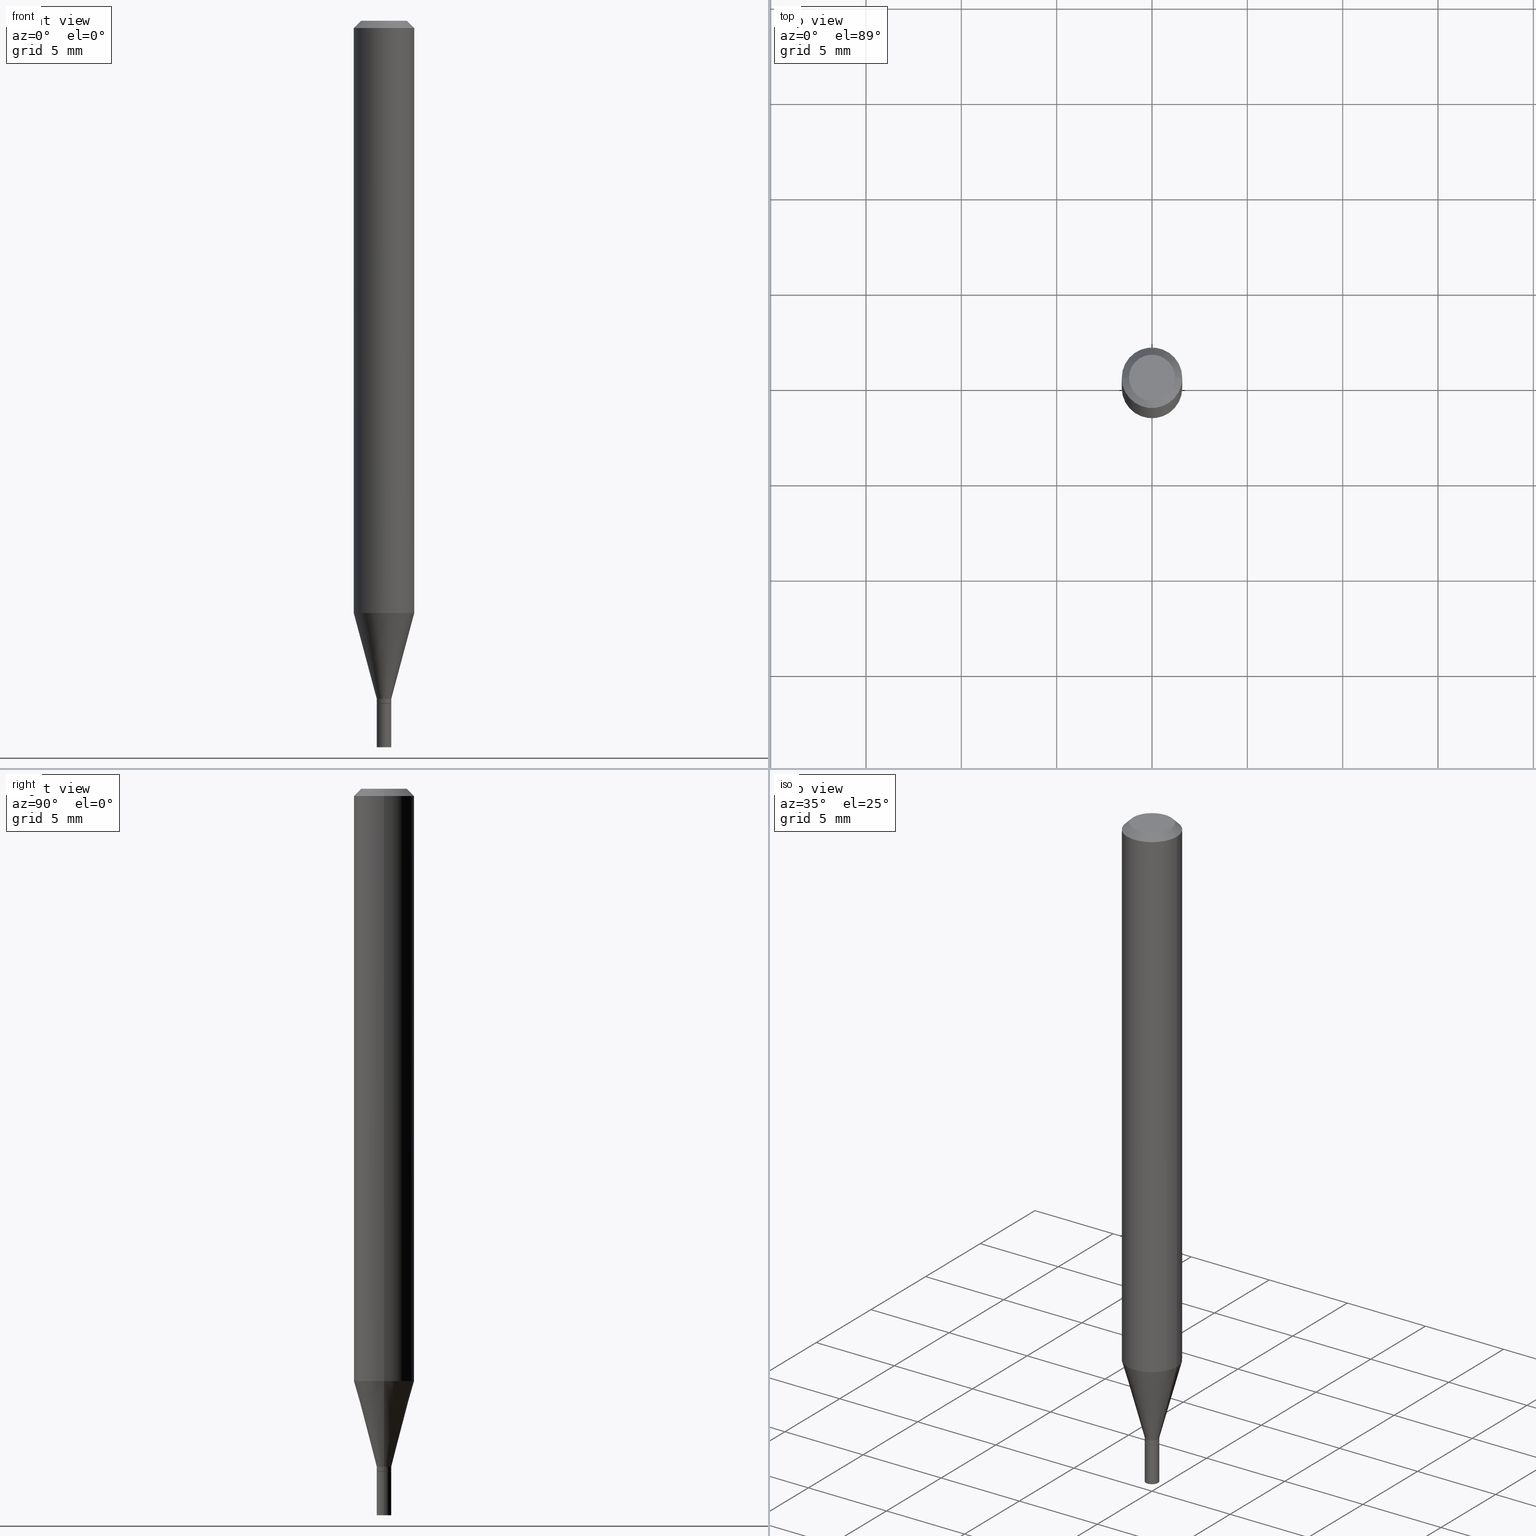
[diagram: canonical four-view strip — front | top / right | iso, engineering-drawing reading convention]
A machine part, canonical four-view strip (front | top / right | iso — engineering-drawing reading convention). The complete STEP part file that produces these views, byte-faithful:
ISO-10303-21;
HEADER;
FILE_DESCRIPTION (( 'STEP AP203' ),
    '1' );
FILE_NAME ('00539.STEP',
    '2024-03-19T21:35:32',
    ( '' ),
    ( '' ),
    'SwSTEP 2.0',
    'SolidWorks 2023',
    '' );
FILE_SCHEMA (( 'CONFIG_CONTROL_DESIGN' ));
ENDSEC;

DATA;
#1 = EDGE_CURVE ( 'NONE', #414, #418, #147, .T. ) ;
#2 = ADVANCED_BREP_SHAPE_REPRESENTATION ( '00539', ( #182, #176, #53 ), #79 ) ;
#3 = DIRECTION ( 'NONE',  ( 1.000000000000000000, 0.000000000000000000, 0.000000000000000000 ) ) ;
#4 = CARTESIAN_POINT ( 'NONE',  ( -0.06250000000000000000, -3.825041341393883381E-15, -1.222727586640478536 ) ) ;
#5 = CC_DESIGN_PERSON_AND_ORGANIZATION_ASSIGNMENT ( #84, #71, ( #253 ) ) ;
#6 = CARTESIAN_POINT ( 'NONE',  ( 0.000000000000000000, 0.000000000000000000, 0.000000000000000000 ) ) ;
#7 = CARTESIAN_POINT ( 'NONE',  ( 0.06250000000000000000, -4.364351673553916694E-16, 3.047610484872459871E-30 ) ) ;
#8 = AXIS2_PLACEMENT_3D ( 'NONE', #39, #315, #130 ) ;
#9 = DIRECTION ( 'NONE',  ( -2.445468806185136597E-29, 3.491481338843145583E-15, 1.000000000000000000 ) ) ;
#10 = CARTESIAN_POINT ( 'NONE',  ( 3.446888282317950988E-29, -4.921242947099414987E-15, -1.409500000000000419 ) ) ;
#11 = ADVANCED_FACE ( 'NONE', ( #85 ), #321, .T. ) ;
#12 = EDGE_LOOP ( 'NONE', ( #145, #366 ) ) ;
#13 = CARTESIAN_POINT ( 'NONE',  ( 3.448111016721043229E-29, -4.922988687768836490E-15, -1.410000000000000364 ) ) ;
#14 = ADVANCED_FACE ( 'NONE', ( #77 ), #378, .T. ) ;
#15 = DATE_AND_TIME ( #20, #140 ) ;
#16 = DIRECTION ( 'NONE',  ( -2.445468806185136597E-29, 3.491481338843145583E-15, 1.000000000000000000 ) ) ;
#17 = APPROVAL_STATUS ( 'not_yet_approved' ) ;
#18 = EDGE_CURVE ( 'NONE', #19, #363, #37, .T. ) ;
#19 = VERTEX_POINT ( 'NONE', #441 ) ;
#20 = CALENDAR_DATE ( 2024, 19, 3 ) ;
#21 = ORIENTED_EDGE ( 'NONE', *, *, #67, .T. ) ;
#22 = AXIS2_PLACEMENT_3D ( 'NONE', #273, #278, #98 ) ;
#23 = VECTOR ( 'NONE', #262, 39.37007874015748143 ) ;
#24 = VECTOR ( 'NONE', #406, 39.37007874015748143 ) ;
#25 = DATE_TIME_ROLE ( 'classification_date' ) ;
#26 = ORIENTED_EDGE ( 'NONE', *, *, #1, .T. ) ;
#27 = FACE_OUTER_BOUND ( 'NONE', #59, .T. ) ;
#28 = FACE_OUTER_BOUND ( 'NONE', #74, .T. ) ;
#29 = ORIENTED_EDGE ( 'NONE', *, *, #229, .T. ) ;
#30 = FACE_OUTER_BOUND ( 'NONE', #462, .T. ) ;
#31 = AXIS2_PLACEMENT_3D ( 'NONE', #228, #372, #43 ) ;
#32 = ORIENTED_EDGE ( 'NONE', *, *, #183, .T. ) ;
#33 = AXIS2_PLACEMENT_3D ( 'NONE', #119, #109, #300 ) ;
#34 = CARTESIAN_POINT ( 'NONE',  ( 0.000000000000000000, 0.000000000000000000, 0.000000000000000000 ) ) ;
#35 = PRODUCT_DEFINITION_SHAPE ( 'NONE', 'NONE',  #253 ) ;
#36 = EDGE_CURVE ( 'NONE', #206, #313, #163, .T. ) ;
#37 = CIRCLE ( 'NONE', #350, 0.06250000000000000000 ) ;
#38 = ORIENTED_EDGE ( 'NONE', *, *, #178, .T. ) ;
#39 = CARTESIAN_POINT ( 'NONE',  ( 3.668203209277704895E-29, -5.237222008264718177E-15, -1.500000000000000222 ) ) ;
#40 = LINE ( 'NONE', #123, #23 ) ;
#41 = CARTESIAN_POINT ( 'NONE',  ( 0.01499999999999999944, -1.047444401652940105E-16, 7.314265163693904390E-31 ) ) ;
#42 = CARTESIAN_POINT ( 'NONE',  ( 3.668203209277705088E-31, -5.237222008264718399E-17, -0.01499999999999999944 ) ) ;
#43 = DIRECTION ( 'NONE',  ( 1.000000000000000000, -6.982962677686270655E-15, 0.000000000000000000 ) ) ;
#44 = VERTEX_POINT ( 'NONE', #203 ) ;
#45 = CC_DESIGN_APPROVAL ( #455, ( #287 ) ) ;
#46 = VERTEX_POINT ( 'NONE', #404 ) ;
#47 = CARTESIAN_POINT ( 'NONE',  ( 0.01499999999999999944, -5.027733127934130649E-15, -1.410000000000000364 ) ) ;
#48 = DATE_AND_TIME ( #359, #172 ) ;
#49 = EDGE_CURVE ( 'NONE', #313, #44, #167, .T. ) ;
#50 = CARTESIAN_POINT ( 'NONE',  ( 3.668203209277704895E-29, -5.237222008264718177E-15, -1.500000000000000222 ) ) ;
#51 = APPROVAL ( #82, 'UNSPECIFIED' ) ;
#52 = APPROVAL_DATE_TIME ( #177, #455 ) ;
#53 = AXIS2_PLACEMENT_3D ( 'NONE', #6, #305, #3 ) ;
#54 = PERSON_AND_ORGANIZATION ( #295, #64 ) ;
#55 = ORIENTED_EDGE ( 'NONE', *, *, #36, .F. ) ;
#56 = DIRECTION ( 'NONE',  ( 1.000000000000000000, -6.982962677686266711E-15, 0.000000000000000000 ) ) ;
#57 = SECURITY_CLASSIFICATION_LEVEL ( 'unclassified' ) ;
#58 = CALENDAR_DATE ( 2024, 19, 3 ) ;
#59 = EDGE_LOOP ( 'NONE', ( #358, #29, #457, #459 ) ) ;
#60 = DIRECTION ( 'NONE',  ( 2.438088387897960049E-29, -3.491481338843145188E-15, -1.000000000000000000 ) ) ;
#61 = ADVANCED_FACE ( 'NONE', ( #371 ), #439, .F. ) ;
#62 = FACE_OUTER_BOUND ( 'NONE', #399, .T. ) ;
#63 = VECTOR ( 'NONE', #443, 39.37007874015748143 ) ;
#64 = ORGANIZATION ( 'UNSPECIFIED', 'UNSPECIFIED', '' ) ;
#65 = APPROVAL_ROLE ( '' ) ;
#66 = ORIENTED_EDGE ( 'NONE', *, *, #133, .T. ) ;
#67 = EDGE_CURVE ( 'NONE', #149, #301, #179, .T. ) ;
#68 = ORIENTED_EDGE ( 'NONE', *, *, #72, .F. ) ;
#69 = ORIENTED_EDGE ( 'NONE', *, *, #1, .F. ) ;
#70 = PERSON_AND_ORGANIZATION_ROLE ( 'design_supplier' ) ;
#71 = PERSON_AND_ORGANIZATION_ROLE ( 'creator' ) ;
#72 = EDGE_CURVE ( 'NONE', #19, #46, #90, .T. ) ;
#73 = DIRECTION ( 'NONE',  ( -2.445468806185136597E-29, 3.491481338843145583E-15, 1.000000000000000000 ) ) ;
#74 = EDGE_LOOP ( 'NONE', ( #435, #325, #193, #68 ) ) ;
#75 = CIRCLE ( 'NONE', #335, 0.01499999999999992138 ) ;
#76 =( NAMED_UNIT ( * ) SI_UNIT ( $, .STERADIAN. ) SOLID_ANGLE_UNIT ( ) );
#77 = FACE_OUTER_BOUND ( 'NONE', #346, .T. ) ;
#78 = DIRECTION ( 'NONE',  ( -2.445468806185136597E-29, 3.491481338843145583E-15, 1.000000000000000000 ) ) ;
#79 =( GEOMETRIC_REPRESENTATION_CONTEXT ( 3 ) GLOBAL_UNCERTAINTY_ASSIGNED_CONTEXT ( ( #332 ) ) GLOBAL_UNIT_ASSIGNED_CONTEXT ( ( #391, #431, #76 ) ) REPRESENTATION_CONTEXT ( 'NONE', 'WORKASPACE' ) );
#80 = CARTESIAN_POINT ( 'NONE',  ( 3.448111016721043229E-29, -4.922988687768836490E-15, -1.410000000000000364 ) ) ;
#81 = PERSON_AND_ORGANIZATION_ROLE ( 'creator' ) ;
#82 = APPROVAL_STATUS ( 'not_yet_approved' ) ;
#83 = CARTESIAN_POINT ( 'NONE',  ( 3.448111016721043229E-29, -4.922988687768836490E-15, -1.410000000000000364 ) ) ;
#84 = PERSON_AND_ORGANIZATION ( #295, #64 ) ;
#85 = FACE_OUTER_BOUND ( 'NONE', #244, .T. ) ;
#86 = EDGE_LOOP ( 'NONE', ( #242, #384, #99, #390 ) ) ;
#87 = CARTESIAN_POINT ( 'NONE',  ( -0.01499999999999992138, 1.065814103640144693E-16, -7.378402635382319121E-31 ) ) ;
#88 = DIRECTION ( 'NONE',  ( 1.000000000000000000, -6.982962677686266711E-15, 0.000000000000000000 ) ) ;
#89 = DIRECTION ( 'NONE',  ( -2.445468806185136877E-29, 3.491481338843145188E-15, 1.000000000000000000 ) ) ;
#90 = LINE ( 'NONE', #7, #461 ) ;
#91 = CIRCLE ( 'NONE', #341, 0.06250000000000000000 ) ;
#92 = ORIENTED_EDGE ( 'NONE', *, *, #49, .F. ) ;
#93 = ADVANCED_FACE ( 'NONE', ( #227 ), #225, .T. ) ;
#94 = APPROVAL_PERSON_ORGANIZATION ( #261, #51, #426 ) ;
#95 = LINE ( 'NONE', #41, #127 ) ;
#96 = CARTESIAN_POINT ( 'NONE',  ( 1.047444401653284739E-16, 0.01499999999999507630, -1.410000000000000364 ) ) ;
#97 = ADVANCED_FACE ( 'NONE', ( #132 ), #157, .T. ) ;
#98 = DIRECTION ( 'NONE',  ( 1.000000000000000000, -6.982962677686265922E-15, 4.876176775795935793E-29 ) ) ;
#99 = ORIENTED_EDGE ( 'NONE', *, *, #129, .F. ) ;
#100 = FACE_OUTER_BOUND ( 'NONE', #251, .T. ) ;
#101 = LOCAL_TIME ( 17, 35, 32.00000000000000000, #450 ) ;
#102 = VERTEX_POINT ( 'NONE', #274 ) ;
#103 = EDGE_CURVE ( 'NONE', #46, #250, #208, .T. ) ;
#104 = ORIENTED_EDGE ( 'NONE', *, *, #438, .T. ) ;
#105 = DIRECTION ( 'NONE',  ( 2.438088387897960049E-29, -3.491481338843145188E-15, -1.000000000000000000 ) ) ;
#106 = AXIS2_PLACEMENT_3D ( 'NONE', #340, #9, #131 ) ;
#107 = ORIENTED_EDGE ( 'NONE', *, *, #320, .T. ) ;
#108 = APPROVAL_DATE_TIME ( #155, #288 ) ;
#109 = DIRECTION ( 'NONE',  ( -2.445468806185136597E-29, 3.491481338843145583E-15, 1.000000000000000000 ) ) ;
#110 = ORIENTED_EDGE ( 'NONE', *, *, #166, .F. ) ;
#111 = ORIENTED_EDGE ( 'NONE', *, *, #103, .T. ) ;
#112 = CARTESIAN_POINT ( 'NONE',  ( -0.01499999999999999944, -4.973523937652763000E-15, -1.410000000000000364 ) ) ;
#113 = LINE ( 'NONE', #151, #269 ) ;
#114 = ADVANCED_FACE ( 'NONE', ( #270 ), #309, .T. ) ;
#115 = CARTESIAN_POINT ( 'NONE',  ( 3.446888282317950988E-29, -4.921242947099414987E-15, -1.409500000000000419 ) ) ;
#116 = CYLINDRICAL_SURFACE ( 'NONE', #279, 0.01499999999999999944 ) ;
#117 = PERSON_AND_ORGANIZATION ( #295, #64 ) ;
#118 = VECTOR ( 'NONE', #377, 39.37007874015748143 ) ;
#119 = CARTESIAN_POINT ( 'NONE',  ( 0.000000000000000000, 0.000000000000000000, 0.000000000000000000 ) ) ;
#120 = DIRECTION ( 'NONE',  ( -2.445468806185136597E-29, 3.491481338843145583E-15, 1.000000000000000000 ) ) ;
#121 = PRODUCT ( '00539', '00539', '', ( #368 ) ) ;
#122 = APPLICATION_PROTOCOL_DEFINITION ( 'international standard', 'config_control_design', 1994, #126 ) ;
#123 = CARTESIAN_POINT ( 'NONE',  ( -0.06250000000000000000, 3.840629472727444916E-16, -0.01499999999999999944 ) ) ;
#124 = DIRECTION ( 'NONE',  ( -2.445468806185136597E-29, 3.491481338843145583E-15, 1.000000000000000000 ) ) ;
#125 = CALENDAR_DATE ( 2024, 19, 3 ) ;
#126 = APPLICATION_CONTEXT ( 'configuration controlled 3d designs of mechanical parts and assemblies' ) ;
#127 = VECTOR ( 'NONE', #201, 39.37007874015748143 ) ;
#128 = DIRECTION ( 'NONE',  ( 2.445468806185136597E-29, -3.491481338843145583E-15, -1.000000000000000000 ) ) ;
#129 = EDGE_CURVE ( 'NONE', #102, #44, #75, .T. ) ;
#130 = DIRECTION ( 'NONE',  ( 1.000000000000000000, -6.982962677686268288E-15, 0.000000000000000000 ) ) ;
#131 = DIRECTION ( 'NONE',  ( 1.000000000000000000, -6.982962677686267499E-15, 4.852736867747366768E-29 ) ) ;
#132 = FACE_OUTER_BOUND ( 'NONE', #393, .T. ) ;
#133 = EDGE_CURVE ( 'NONE', #149, #235, #95, .T. ) ;
#134 = CARTESIAN_POINT ( 'NONE',  ( 3.668203209277705088E-31, -5.237222008264718399E-17, -0.01499999999999999944 ) ) ;
#135 = CARTESIAN_POINT ( 'NONE',  ( 0.04749999999999999362, -4.035134999187565804E-16, 7.384026679692592746E-16 ) ) ;
#136 = CIRCLE ( 'NONE', #202, 0.01499999999999999944 ) ;
#137 = EDGE_CURVE ( 'NONE', #219, #188, #189, .T. ) ;
#138 = ORIENTED_EDGE ( 'NONE', *, *, #72, .T. ) ;
#139 = CARTESIAN_POINT ( 'NONE',  ( 0.000000000000000000, 0.000000000000000000, 0.000000000000000000 ) ) ;
#140 = LOCAL_TIME ( 17, 35, 32.00000000000000000, #383 ) ;
#141 = COORDINATED_UNIVERSAL_TIME_OFFSET ( 5, 0, .BEHIND. ) ;
#142 = LINE ( 'NONE', #411, #118 ) ;
#143 = CLOSED_SHELL ( 'NONE', ( #453, #97, #93, #271, #11, #14, #444, #328, #265, #357, #333, #114 ) ) ;
#144 = PRODUCT_DEFINITION_FORMATION_WITH_SPECIFIED_SOURCE ( 'ANY', '', #121, .NOT_KNOWN. ) ;
#145 = ORIENTED_EDGE ( 'NONE', *, *, #67, .F. ) ;
#146 = CARTESIAN_POINT ( 'NONE',  ( -1.805740690922698150E-44, 2.578119135766651022E-30, 7.384026679692567108E-16 ) ) ;
#147 = CIRCLE ( 'NONE', #353, 0.01450000000000000074 ) ;
#148 = AXIS2_PLACEMENT_3D ( 'NONE', #115, #268, #255 ) ;
#149 = VERTEX_POINT ( 'NONE', #410 ) ;
#150 = CARTESIAN_POINT ( 'NONE',  ( 0.000000000000000000, 0.000000000000000000, 0.000000000000000000 ) ) ;
#151 = CARTESIAN_POINT ( 'NONE',  ( -0.01499999999999992138, -4.781492464016388930E-15, -1.400000000000000133 ) ) ;
#152 = DIRECTION ( 'NONE',  ( 1.000000000000000000, -6.982962677686299054E-15, 0.000000000000000000 ) ) ;
#153 = DIRECTION ( 'NONE',  ( 1.000000000000000000, -6.982962677686266711E-15, 4.876176775795935793E-29 ) ) ;
#154 = DESIGN_CONTEXT ( 'detailed design', #428, 'design' ) ;
#155 = DATE_AND_TIME ( #58, #165 ) ;
#156 = PERSON_AND_ORGANIZATION_ROLE ( 'design_owner' ) ;
#157 = CONICAL_SURFACE ( 'NONE', #194, 0.01450000000000000074, 0.7853981633974718157 ) ;
#158 = CARTESIAN_POINT ( 'NONE',  ( 2.990142171591324590E-29, -4.269130551243945997E-15, -1.222727586640478536 ) ) ;
#159 = LINE ( 'NONE', #307, #417 ) ;
#160 = LINE ( 'NONE', #338, #403 ) ;
#161 = DIRECTION ( 'NONE',  ( 1.000000000000000000, -6.982962677686239100E-15, 0.000000000000000000 ) ) ;
#162 = EDGE_CURVE ( 'NONE', #206, #102, #445, .T. ) ;
#163 = CIRCLE ( 'NONE', #291, 0.01499999999999992312 ) ;
#164 = DIRECTION ( 'NONE',  ( -2.445468806185136597E-29, 3.491481338843145583E-15, 1.000000000000000000 ) ) ;
#165 = LOCAL_TIME ( 17, 35, 32.00000000000000000, #141 ) ;
#166 = EDGE_CURVE ( 'NONE', #363, #19, #238, .T. ) ;
#167 = LINE ( 'NONE', #87, #63 ) ;
#168 = DIRECTION ( 'NONE',  ( 1.000000000000000000, -6.982962677686239889E-15, 0.000000000000000000 ) ) ;
#169 = DIRECTION ( 'NONE',  ( 1.000000000000000000, -6.982962677686239889E-15, 0.000000000000000000 ) ) ;
#170 = ORIENTED_EDGE ( 'NONE', *, *, #175, .T. ) ;
#171 = CARTESIAN_POINT ( 'NONE',  ( -0.06250000000000000000, -1.716662175813234119E-15, -0.01499999999999999944 ) ) ;
#172 = LOCAL_TIME ( 17, 35, 32.00000000000000000, #217 ) ;
#173 = PERSON_AND_ORGANIZATION ( #295, #64 ) ;
#174 = CARTESIAN_POINT ( 'NONE',  ( 0.06250000000000000000, -4.811533449433679005E-16, -0.01499999999999999944 ) ) ;
#175 = EDGE_CURVE ( 'NONE', #250, #46, #91, .T. ) ;
#176 = MANIFOLD_SOLID_BREP ( 'Body-Move/Copy2[2]', #143 ) ;
#177 = DATE_AND_TIME ( #234, #101 ) ;
#178 = EDGE_CURVE ( 'NONE', #219, #46, #415, .T. ) ;
#179 = CIRCLE ( 'NONE', #8, 0.01499999999999999944 ) ;
#180 = EDGE_LOOP ( 'NONE', ( #69, #266 ) ) ;
#181 = DIRECTION ( 'NONE',  ( 1.000000000000000000, -6.982962677686267499E-15, 4.876176775795936353E-29 ) ) ;
#182 = MANIFOLD_SOLID_BREP ( 'Body-Move/Copy2[1]', #360 ) ;
#183 = EDGE_CURVE ( 'NONE', #301, #149, #136, .T. ) ;
#184 = ORIENTED_EDGE ( 'NONE', *, *, #223, .F. ) ;
#185 = ORIENTED_EDGE ( 'NONE', *, *, #210, .T. ) ;
#186 = ADVANCED_FACE ( 'NONE', ( #446 ), #416, .F. ) ;
#187 = ORIENTED_EDGE ( 'NONE', *, *, #345, .F. ) ;
#188 = VERTEX_POINT ( 'NONE', #452 ) ;
#189 = CIRCLE ( 'NONE', #106, 0.04749999999999999362 ) ;
#190 = AXIS2_PLACEMENT_3D ( 'NONE', #419, #385, #355 ) ;
#191 = EDGE_LOOP ( 'NONE', ( #107, #465 ) ) ;
#192 = FACE_OUTER_BOUND ( 'NONE', #86, .T. ) ;
#193 = ORIENTED_EDGE ( 'NONE', *, *, #103, .F. ) ;
#194 = AXIS2_PLACEMENT_3D ( 'NONE', #230, #164, #342 ) ;
#195 = DIRECTION ( 'NONE',  ( -2.445468806185136597E-29, 3.491481338843145583E-15, 1.000000000000000000 ) ) ;
#196 = DIRECTION ( 'NONE',  ( -2.438088387897960049E-29, 3.491481338843145188E-15, 1.000000000000000000 ) ) ;
#197 = APPROVAL_PERSON_ORGANIZATION ( #54, #455, #65 ) ;
#198 = DIRECTION ( 'NONE',  ( -0.2588190451025213501, 5.211531920934551042E-15, 0.9659258262890682012 ) ) ;
#199 = PRODUCT_RELATED_PRODUCT_CATEGORY ( 'detail', '', ( #121 ) ) ;
#200 = DIRECTION ( 'NONE',  ( -2.445468806185136877E-29, 3.491481338843145188E-15, 1.000000000000000000 ) ) ;
#201 = DIRECTION ( 'NONE',  ( -2.445468806185136877E-29, 3.491481338843145188E-15, 1.000000000000000000 ) ) ;
#202 = AXIS2_PLACEMENT_3D ( 'NONE', #50, #317, #284 ) ;
#203 = CARTESIAN_POINT ( 'NONE',  ( -0.01499999999999992138, -4.303266902705136550E-15, -1.400000000000000133 ) ) ;
#204 = CONICAL_SURFACE ( 'NONE', #215, 0.01450000000000000074, 0.7853981633974718157 ) ;
#205 = CC_DESIGN_PERSON_AND_ORGANIZATION_ASSIGNMENT ( #173, #351, ( #287 ) ) ;
#206 = VERTEX_POINT ( 'NONE', #241 ) ;
#207 = CARTESIAN_POINT ( 'NONE',  ( 3.448111016721043229E-29, -4.922988687768836490E-15, -1.410000000000000364 ) ) ;
#208 = CIRCLE ( 'NONE', #285, 0.06250000000000000000 ) ;
#209 = SHAPE_DEFINITION_REPRESENTATION ( #35, #2 ) ;
#210 = EDGE_CURVE ( 'NONE', #418, #313, #381, .T. ) ;
#211 = ORIENTED_EDGE ( 'NONE', *, *, #438, .F. ) ;
#212 = ORIENTED_EDGE ( 'NONE', *, *, #294, .T. ) ;
#213 = AXIS2_PLACEMENT_3D ( 'NONE', #207, #16, #347 ) ;
#214 = DIRECTION ( 'NONE',  ( -2.445468806185136597E-29, 3.491481338843145583E-15, 1.000000000000000000 ) ) ;
#215 = AXIS2_PLACEMENT_3D ( 'NONE', #326, #460, #420 ) ;
#216 = CARTESIAN_POINT ( 'NONE',  ( -0.01499999999999999944, -4.973523937652763000E-15, -1.500000000000000222 ) ) ;
#217 = COORDINATED_UNIVERSAL_TIME_OFFSET ( 5, 0, .BEHIND. ) ;
#218 = EDGE_CURVE ( 'NONE', #44, #102, #245, .T. ) ;
#219 = VERTEX_POINT ( 'NONE', #135 ) ;
#220 = LINE ( 'NONE', #433, #24 ) ;
#221 = DIRECTION ( 'NONE',  ( 1.000000000000000000, -6.982962677686266711E-15, 4.876176775795935793E-29 ) ) ;
#222 = DIMENSIONAL_EXPONENTS ( 1.000000000000000000, 0.000000000000000000, 0.000000000000000000, 0.000000000000000000, 0.000000000000000000, 0.000000000000000000, 0.000000000000000000 ) ;
#223 = EDGE_CURVE ( 'NONE', #414, #206, #142, .T. ) ;
#224 = LENGTH_MEASURE_WITH_UNIT ( LENGTH_MEASURE( 0.02539999999999999897 ), #249 );
#225 = CONICAL_SURFACE ( 'NONE', #422, 0.06250000000000000000, 0.7853981633974237431 ) ;
#226 = DIRECTION ( 'NONE',  ( 1.000000000000000000, -6.982962677686265922E-15, 4.876176775795935793E-29 ) ) ;
#227 = FACE_OUTER_BOUND ( 'NONE', #231, .T. ) ;
#228 = CARTESIAN_POINT ( 'NONE',  ( 2.990142171591324590E-29, -4.269130551243945997E-15, -1.222727586640478536 ) ) ;
#229 = EDGE_CURVE ( 'NONE', #418, #414, #373, .T. ) ;
#230 = CARTESIAN_POINT ( 'NONE',  ( 3.448111016721043229E-29, -4.922988687768836490E-15, -1.410000000000000364 ) ) ;
#231 = EDGE_LOOP ( 'NONE', ( #380, #38, #111, #187 ) ) ;
#232 = DIRECTION ( 'NONE',  ( -2.445468806185136597E-29, 3.491481338843145583E-15, 1.000000000000000000 ) ) ;
#233 = CARTESIAN_POINT ( 'NONE',  ( 3.423656328659191123E-29, -4.888073874380404052E-15, -1.400000000000000133 ) ) ;
#234 = CALENDAR_DATE ( 2024, 19, 3 ) ;
#235 = VERTEX_POINT ( 'NONE', #47 ) ;
#236 = CYLINDRICAL_SURFACE ( 'NONE', #412, 0.01499999999999999944 ) ;
#237 = EDGE_CURVE ( 'NONE', #293, #235, #432, .T. ) ;
#238 = CIRCLE ( 'NONE', #31, 0.06250000000000000000 ) ;
#239 = CARTESIAN_POINT ( 'NONE',  ( 3.423656328659191123E-29, -4.888073874380404052E-15, -1.400000000000000133 ) ) ;
#240 = LOCAL_TIME ( 17, 35, 32.00000000000000000, #437 ) ;
#241 = CARTESIAN_POINT ( 'NONE',  ( 0.01499999999999992312, -5.025987387264709145E-15, -1.409500000000000419 ) ) ;
#242 = ORIENTED_EDGE ( 'NONE', *, *, #36, .T. ) ;
#243 = ORIENTED_EDGE ( 'NONE', *, *, #162, .T. ) ;
#244 = EDGE_LOOP ( 'NONE', ( #354, #104, #264, #246 ) ) ;
#245 = CIRCLE ( 'NONE', #318, 0.01499999999999992138 ) ;
#246 = ORIENTED_EDGE ( 'NONE', *, *, #364, .F. ) ;
#247 = CONICAL_SURFACE ( 'NONE', #190, 0.06250000000000000000, 0.7853981633974237431 ) ;
#248 = DIRECTION ( 'NONE',  ( 1.000000000000000000, -6.982962677686268288E-15, 0.000000000000000000 ) ) ;
#249 =( LENGTH_UNIT ( ) NAMED_UNIT ( * ) SI_UNIT ( $, .METRE. ) );
#250 = VERTEX_POINT ( 'NONE', #171 ) ;
#251 = EDGE_LOOP ( 'NONE', ( #21, #308, #343, #322 ) ) ;
#252 = DIRECTION ( 'NONE',  ( -2.445468806185136597E-29, 3.491481338843145583E-15, 1.000000000000000000 ) ) ;
#253 = PRODUCT_DEFINITION ( 'UNKNOWN', '', #144, #154 ) ;
#254 = ORIENTED_EDGE ( 'NONE', *, *, #218, .T. ) ;
#255 = DIRECTION ( 'NONE',  ( 1.000000000000000000, -6.982962677686239100E-15, 0.000000000000000000 ) ) ;
#256 = AXIS2_PLACEMENT_3D ( 'NONE', #96, #60, #277 ) ;
#257 = CYLINDRICAL_SURFACE ( 'NONE', #319, 0.06250000000000000000 ) ;
#258 = APPROVAL_PERSON_ORGANIZATION ( #348, #288, #451 ) ;
#259 = CARTESIAN_POINT ( 'NONE',  ( 3.423656328659191123E-29, -4.888073874380404052E-15, -1.400000000000000133 ) ) ;
#260 = ADVANCED_FACE ( 'NONE', ( #100 ), #236, .T. ) ;
#261 = PERSON_AND_ORGANIZATION ( #295, #64 ) ;
#262 = DIRECTION ( 'NONE',  ( -0.7071067811865301422, 2.468850131082075228E-15, -0.7071067811865648922 ) ) ;
#263 = DIRECTION ( 'NONE',  ( 1.000000000000000000, -6.982962677686270655E-15, 0.000000000000000000 ) ) ;
#264 = ORIENTED_EDGE ( 'NONE', *, *, #18, .F. ) ;
#265 = ADVANCED_FACE ( 'NONE', ( #299 ), #430, .F. ) ;
#266 = ORIENTED_EDGE ( 'NONE', *, *, #229, .F. ) ;
#267 = DIRECTION ( 'NONE',  ( -2.438088387897960049E-29, 3.491481338843145188E-15, 1.000000000000000000 ) ) ;
#268 = DIRECTION ( 'NONE',  ( -2.445468806185136597E-29, 3.491481338843145583E-15, 1.000000000000000000 ) ) ;
#269 = VECTOR ( 'NONE', #198, 39.37007874015747433 ) ;
#270 = FACE_OUTER_BOUND ( 'NONE', #427, .T. ) ;
#271 = ADVANCED_FACE ( 'NONE', ( #28 ), #327, .T. ) ;
#272 = ORIENTED_EDGE ( 'NONE', *, *, #218, .F. ) ;
#273 = CARTESIAN_POINT ( 'NONE',  ( 0.000000000000000000, 0.000000000000000000, 0.000000000000000000 ) ) ;
#274 = CARTESIAN_POINT ( 'NONE',  ( 0.01499999999999992138, -4.992818314545696633E-15, -1.400000000000000133 ) ) ;
#275 = DIRECTION ( 'NONE',  ( -2.445468806185136597E-29, 3.491481338843145583E-15, 1.000000000000000000 ) ) ;
#276 = EDGE_LOOP ( 'NONE', ( #212, #447 ) ) ;
#277 = DIRECTION ( 'NONE',  ( -1.000000000000000000, 6.982962677686265922E-15, -4.876176775795935793E-29 ) ) ;
#278 = DIRECTION ( 'NONE',  ( -2.445468806185136597E-29, 3.491481338843145583E-15, 1.000000000000000000 ) ) ;
#279 = AXIS2_PLACEMENT_3D ( 'NONE', #150, #78, #181 ) ;
#280 = ORIENTED_EDGE ( 'NONE', *, *, #374, .F. ) ;
#281 = CARTESIAN_POINT ( 'NONE',  ( -0.01450000000000000074, -4.819959991083622266E-15, -1.410000000000000364 ) ) ;
#282 = DIRECTION ( 'NONE',  ( -2.445468806185136597E-29, 3.491481338843145583E-15, 1.000000000000000000 ) ) ;
#283 = CC_DESIGN_DATE_AND_TIME_ASSIGNMENT ( #48, #344, ( #253 ) ) ;
#284 = DIRECTION ( 'NONE',  ( 1.000000000000000000, -6.982962677686268288E-15, 0.000000000000000000 ) ) ;
#285 = AXIS2_PLACEMENT_3D ( 'NONE', #311, #409, #88 ) ;
#286 = ORIENTED_EDGE ( 'NONE', *, *, #175, .F. ) ;
#287 = SECURITY_CLASSIFICATION ( '', '', #57 ) ;
#288 = APPROVAL ( #17, 'UNSPECIFIED' ) ;
#289 = ORIENTED_EDGE ( 'NONE', *, *, #166, .T. ) ;
#290 = CARTESIAN_POINT ( 'NONE',  ( 3.316907271900976096E-16, 0.04749999999999999362, 2.033559703895789590E-16 ) ) ;
#291 = AXIS2_PLACEMENT_3D ( 'NONE', #10, #369, #161 ) ;
#292 = ORIENTED_EDGE ( 'NONE', *, *, #345, .T. ) ;
#293 = VERTEX_POINT ( 'NONE', #112 ) ;
#294 = EDGE_CURVE ( 'NONE', #235, #293, #312, .T. ) ;
#295 = PERSON ( 'UNSPECIFIED', 'UNSPECIFIED', 'UNSPECIFIED', ('UNSPECIFIED'), ('UNSPECIFIED'), ('UNSPECIFIED') ) ;
#296 = DATE_AND_TIME ( #125, #240 ) ;
#297 = DIRECTION ( 'NONE',  ( 1.000000000000000000, -6.982962677686239889E-15, 0.000000000000000000 ) ) ;
#298 = ORIENTED_EDGE ( 'NONE', *, *, #320, .F. ) ;
#299 = FACE_OUTER_BOUND ( 'NONE', #191, .T. ) ;
#300 = DIRECTION ( 'NONE',  ( 1.000000000000000000, -6.982962677686265922E-15, 4.876176775795935793E-29 ) ) ;
#301 = VERTEX_POINT ( 'NONE', #216 ) ;
#302 = ADVANCED_FACE ( 'NONE', ( #62 ), #116, .T. ) ;
#303 = AXIS2_PLACEMENT_3D ( 'NONE', #290, #105, #389 ) ;
#304 = AXIS2_PLACEMENT_3D ( 'NONE', #83, #196, #337 ) ;
#305 = DIRECTION ( 'NONE',  ( 0.000000000000000000, 0.000000000000000000, 1.000000000000000000 ) ) ;
#306 = APPLICATION_PROTOCOL_DEFINITION ( 'international standard', 'config_control_design', 1994, #428 ) ;
#307 = CARTESIAN_POINT ( 'NONE',  ( 0.01499999999999992138, -4.992818314545696633E-15, -1.400000000000000133 ) ) ;
#308 = ORIENTED_EDGE ( 'NONE', *, *, #374, .T. ) ;
#309 = CYLINDRICAL_SURFACE ( 'NONE', #22, 0.01499999999999992138 ) ;
#310 = DIRECTION ( 'NONE',  ( 0.2588190451025213501, 1.565188264969621968E-15, 0.9659258262890682012 ) ) ;
#311 = CARTESIAN_POINT ( 'NONE',  ( 3.668203209277705088E-31, -5.237222008264718399E-17, -0.01499999999999999944 ) ) ;
#312 = CIRCLE ( 'NONE', #375, 0.01499999999999999944 ) ;
#313 = VERTEX_POINT ( 'NONE', #458 ) ;
#314 = EDGE_LOOP ( 'NONE', ( #361, #289, #138, #286 ) ) ;
#315 = DIRECTION ( 'NONE',  ( -2.445468806185136597E-29, 3.491481338843145583E-15, 1.000000000000000000 ) ) ;
#316 = DIRECTION ( 'NONE',  ( 0.7071067811865301422, -7.319954787623197670E-15, -0.7071067811865648922 ) ) ;
#317 = DIRECTION ( 'NONE',  ( -2.445468806185136597E-29, 3.491481338843145583E-15, 1.000000000000000000 ) ) ;
#318 = AXIS2_PLACEMENT_3D ( 'NONE', #239, #282, #169 ) ;
#319 = AXIS2_PLACEMENT_3D ( 'NONE', #34, #195, #221 ) ;
#320 = EDGE_CURVE ( 'NONE', #188, #219, #464, .T. ) ;
#321 = CONICAL_SURFACE ( 'NONE', #466, 0.01499999999999992138, 0.2617993877991500740 ) ;
#322 = ORIENTED_EDGE ( 'NONE', *, *, #133, .F. ) ;
#323 = CC_DESIGN_PERSON_AND_ORGANIZATION_ASSIGNMENT ( #329, #156, ( #121 ) ) ;
#324 = APPROVAL_STATUS ( 'not_yet_approved' ) ;
#325 = ORIENTED_EDGE ( 'NONE', *, *, #436, .T. ) ;
#326 = CARTESIAN_POINT ( 'NONE',  ( 3.448111016721043229E-29, -4.922988687768836490E-15, -1.410000000000000364 ) ) ;
#327 = CYLINDRICAL_SURFACE ( 'NONE', #434, 0.06250000000000000000 ) ;
#328 = ADVANCED_FACE ( 'NONE', ( #30 ), #247, .T. ) ;
#329 = PERSON_AND_ORGANIZATION ( #295, #64 ) ;
#330 = CARTESIAN_POINT ( 'NONE',  ( 3.423656328659191123E-29, -4.888073874380404052E-15, -1.400000000000000133 ) ) ;
#331 = DIRECTION ( 'NONE',  ( -2.445468806185136597E-29, 3.491481338843145583E-15, 1.000000000000000000 ) ) ;
#332 = UNCERTAINTY_MEASURE_WITH_UNIT (LENGTH_MEASURE( 1.000000000000000082E-05 ), #391, 'distance_accuracy_value', 'NONE');
#333 = ADVANCED_FACE ( 'NONE', ( #27 ), #204, .T. ) ;
#334 = DIRECTION ( 'NONE',  ( 1.000000000000000000, -6.982962677686239889E-15, 0.000000000000000000 ) ) ;
#335 = AXIS2_PLACEMENT_3D ( 'NONE', #233, #454, #168 ) ;
#336 = CC_DESIGN_APPROVAL ( #288, ( #144 ) ) ;
#337 = DIRECTION ( 'NONE',  ( 1.000000000000000000, -6.982962677686265922E-15, 4.876176775795935793E-29 ) ) ;
#338 = CARTESIAN_POINT ( 'NONE',  ( -0.06250000000000000000, 4.440892098500626162E-16, -3.074334431409316114E-30 ) ) ;
#339 = DIRECTION ( 'NONE',  ( -1.000000000000000000, 6.982962677686266711E-15, 0.000000000000000000 ) ) ;
#340 = CARTESIAN_POINT ( 'NONE',  ( -1.805740690922698150E-44, 2.578119135766651022E-30, 7.384026679692567108E-16 ) ) ;
#341 = AXIS2_PLACEMENT_3D ( 'NONE', #134, #275, #56 ) ;
#342 = DIRECTION ( 'NONE',  ( 1.000000000000000000, -6.982962677686299054E-15, 0.000000000000000000 ) ) ;
#343 = ORIENTED_EDGE ( 'NONE', *, *, #294, .F. ) ;
#344 = DATE_TIME_ROLE ( 'creation_date' ) ;
#345 = EDGE_CURVE ( 'NONE', #188, #250, #40, .T. ) ;
#346 = EDGE_LOOP ( 'NONE', ( #211, #254, #387, #110 ) ) ;
#347 = DIRECTION ( 'NONE',  ( 1.000000000000000000, -6.982962677686299054E-15, 0.000000000000000000 ) ) ;
#348 = PERSON_AND_ORGANIZATION ( #295, #64 ) ;
#349 = DIRECTION ( 'NONE',  ( 1.000000000000000000, -6.982962677686268288E-15, 0.000000000000000000 ) ) ;
#350 = AXIS2_PLACEMENT_3D ( 'NONE', #158, #124, #263 ) ;
#351 = PERSON_AND_ORGANIZATION_ROLE ( 'classification_officer' ) ;
#352 = CC_DESIGN_DATE_AND_TIME_ASSIGNMENT ( #15, #25, ( #287 ) ) ;
#353 = AXIS2_PLACEMENT_3D ( 'NONE', #80, #73, #152 ) ;
#354 = ORIENTED_EDGE ( 'NONE', *, *, #129, .T. ) ;
#355 = DIRECTION ( 'NONE',  ( -1.000000000000000000, 6.982962677686266711E-15, 0.000000000000000000 ) ) ;
#356 = CC_DESIGN_SECURITY_CLASSIFICATION ( #287, ( #144 ) ) ;
#357 = ADVANCED_FACE ( 'NONE', ( #401 ), #398, .F. ) ;
#358 = ORIENTED_EDGE ( 'NONE', *, *, #210, .F. ) ;
#359 = CALENDAR_DATE ( 2024, 19, 3 ) ;
#360 = CLOSED_SHELL ( 'NONE', ( #260, #61, #302, #186 ) ) ;
#361 = ORIENTED_EDGE ( 'NONE', *, *, #436, .F. ) ;
#362 = CARTESIAN_POINT ( 'NONE',  ( -0.01450000000000000074, -4.817310763909511065E-15, -1.410000000000000364 ) ) ;
#363 = VERTEX_POINT ( 'NONE', #4 ) ;
#364 = EDGE_CURVE ( 'NONE', #102, #19, #159, .T. ) ;
#365 = CYLINDRICAL_SURFACE ( 'NONE', #33, 0.01499999999999992138 ) ;
#366 = ORIENTED_EDGE ( 'NONE', *, *, #183, .F. ) ;
#367 = PERSON_AND_ORGANIZATION ( #295, #64 ) ;
#368 = MECHANICAL_CONTEXT ( 'NONE', #126, 'mechanical' ) ;
#369 = DIRECTION ( 'NONE',  ( -2.445468806185136597E-29, 3.491481338843145583E-15, 1.000000000000000000 ) ) ;
#370 = EDGE_CURVE ( 'NONE', #313, #206, #449, .T. ) ;
#371 = FACE_OUTER_BOUND ( 'NONE', #12, .T. ) ;
#372 = DIRECTION ( 'NONE',  ( -2.445468806185136597E-29, 3.491481338843145583E-15, 1.000000000000000000 ) ) ;
#373 = CIRCLE ( 'NONE', #213, 0.01450000000000000074 ) ;
#374 = EDGE_CURVE ( 'NONE', #301, #293, #220, .T. ) ;
#375 = AXIS2_PLACEMENT_3D ( 'NONE', #388, #252, #248 ) ;
#376 = ORIENTED_EDGE ( 'NONE', *, *, #178, .F. ) ;
#377 = DIRECTION ( 'NONE',  ( 0.7071067811865642261, -2.468850131082431399E-15, 0.7071067811865309194 ) ) ;
#378 = CONICAL_SURFACE ( 'NONE', #456, 0.01499999999999992138, 0.2617993877991500740 ) ;
#379 = CC_DESIGN_APPROVAL ( #51, ( #253 ) ) ;
#380 = ORIENTED_EDGE ( 'NONE', *, *, #137, .F. ) ;
#381 = LINE ( 'NONE', #281, #448 ) ;
#382 = DIRECTION ( 'NONE',  ( -0.7071067811865642261, 7.493145998870414114E-15, 0.7071067811865309194 ) ) ;
#383 = COORDINATED_UNIVERSAL_TIME_OFFSET ( 5, 0, .BEHIND. ) ;
#384 = ORIENTED_EDGE ( 'NONE', *, *, #49, .T. ) ;
#385 = DIRECTION ( 'NONE',  ( 2.445468806185136597E-29, -3.491481338843145583E-15, -1.000000000000000000 ) ) ;
#386 = AXIS2_PLACEMENT_3D ( 'NONE', #13, #413, #349 ) ;
#387 = ORIENTED_EDGE ( 'NONE', *, *, #364, .T. ) ;
#388 = CARTESIAN_POINT ( 'NONE',  ( 3.448111016721043229E-29, -4.922988687768836490E-15, -1.410000000000000364 ) ) ;
#389 = DIRECTION ( 'NONE',  ( -1.000000000000000000, 6.982962677686265922E-15, -4.876176775795935793E-29 ) ) ;
#390 = ORIENTED_EDGE ( 'NONE', *, *, #162, .F. ) ;
#391 =( CONVERSION_BASED_UNIT ( 'INCH', #224 ) LENGTH_UNIT ( ) NAMED_UNIT ( #222 ) );
#392 = VECTOR ( 'NONE', #316, 39.37007874015748143 ) ;
#393 = EDGE_LOOP ( 'NONE', ( #26, #185, #55, #184 ) ) ;
#394 = DIRECTION ( 'NONE',  ( 1.000000000000000000, -6.982962677686267499E-15, 4.876176775795936353E-29 ) ) ;
#395 = FACE_OUTER_BOUND ( 'NONE', #314, .T. ) ;
#396 = DIRECTION ( 'NONE',  ( -2.445468806185136597E-29, 3.491481338843145583E-15, 1.000000000000000000 ) ) ;
#397 = CC_DESIGN_PERSON_AND_ORGANIZATION_ASSIGNMENT ( #367, #70, ( #144 ) ) ;
#398 = PLANE ( 'NONE',  #304 ) ;
#399 = EDGE_LOOP ( 'NONE', ( #280, #32, #66, #407 ) ) ;
#400 = APPROVAL_DATE_TIME ( #296, #51 ) ;
#401 = FACE_OUTER_BOUND ( 'NONE', #180, .T. ) ;
#402 = AXIS2_PLACEMENT_3D ( 'NONE', #405, #267, #226 ) ;
#403 = VECTOR ( 'NONE', #429, 39.37007874015748143 ) ;
#404 = CARTESIAN_POINT ( 'NONE',  ( 0.06250000000000000000, -4.888073874380388472E-16, -0.01499999999999999944 ) ) ;
#405 = CARTESIAN_POINT ( 'NONE',  ( 3.576687321579069994E-29, -5.368277968210015545E-15, -1.500000000000000222 ) ) ;
#406 = DIRECTION ( 'NONE',  ( -2.445468806185136877E-29, 3.491481338843145188E-15, 1.000000000000000000 ) ) ;
#407 = ORIENTED_EDGE ( 'NONE', *, *, #237, .F. ) ;
#408 = CARTESIAN_POINT ( 'NONE',  ( 0.01499999999999992138, -1.047444401652934435E-16, 7.314265163693864978E-31 ) ) ;
#409 = DIRECTION ( 'NONE',  ( -2.445468806185136597E-29, 3.491481338843145583E-15, 1.000000000000000000 ) ) ;
#410 = CARTESIAN_POINT ( 'NONE',  ( 0.01499999999999999944, -5.341966448430012335E-15, -1.500000000000000222 ) ) ;
#411 = CARTESIAN_POINT ( 'NONE',  ( 0.01450000000000000074, -5.024241646595287642E-15, -1.410000000000000364 ) ) ;
#412 = AXIS2_PLACEMENT_3D ( 'NONE', #139, #232, #394 ) ;
#413 = DIRECTION ( 'NONE',  ( -2.445468806185136597E-29, 3.491481338843145583E-15, 1.000000000000000000 ) ) ;
#414 = VERTEX_POINT ( 'NONE', #442 ) ;
#415 = LINE ( 'NONE', #174, #392 ) ;
#416 = PLANE ( 'NONE',  #256 ) ;
#417 = VECTOR ( 'NONE', #310, 39.37007874015747433 ) ;
#418 = VERTEX_POINT ( 'NONE', #362 ) ;
#419 = CARTESIAN_POINT ( 'NONE',  ( 3.668203209277705088E-31, -5.237222008264718399E-17, -0.01499999999999999944 ) ) ;
#420 = DIRECTION ( 'NONE',  ( 1.000000000000000000, -6.982962677686299054E-15, 0.000000000000000000 ) ) ;
#421 = CC_DESIGN_PERSON_AND_ORGANIZATION_ASSIGNMENT ( #117, #81, ( #144 ) ) ;
#422 = AXIS2_PLACEMENT_3D ( 'NONE', #42, #128, #339 ) ;
#423 = ORIENTED_EDGE ( 'NONE', *, *, #370, .T. ) ;
#424 = DIRECTION ( 'NONE',  ( 1.000000000000000000, -6.982962677686267499E-15, 4.852736867747366768E-29 ) ) ;
#425 = AXIS2_PLACEMENT_3D ( 'NONE', #146, #214, #424 ) ;
#426 = APPROVAL_ROLE ( '' ) ;
#427 = EDGE_LOOP ( 'NONE', ( #92, #423, #243, #272 ) ) ;
#428 = APPLICATION_CONTEXT ( 'configuration controlled 3d designs of mechanical parts and assemblies' ) ;
#429 = DIRECTION ( 'NONE',  ( -2.445468806185136877E-29, 3.491481338843145188E-15, 1.000000000000000000 ) ) ;
#430 = PLANE ( 'NONE',  #303 ) ;
#431 =( NAMED_UNIT ( * ) PLANE_ANGLE_UNIT ( ) SI_UNIT ( $, .RADIAN. ) );
#432 = CIRCLE ( 'NONE', #386, 0.01499999999999999944 ) ;
#433 = CARTESIAN_POINT ( 'NONE',  ( -0.01499999999999999944, 1.065814103640150239E-16, -7.378402635382358533E-31 ) ) ;
#434 = AXIS2_PLACEMENT_3D ( 'NONE', #463, #331, #153 ) ;
#435 = ORIENTED_EDGE ( 'NONE', *, *, #18, .T. ) ;
#436 = EDGE_CURVE ( 'NONE', #363, #250, #160, .T. ) ;
#437 = COORDINATED_UNIVERSAL_TIME_OFFSET ( 5, 0, .BEHIND. ) ;
#438 = EDGE_CURVE ( 'NONE', #44, #363, #113, .T. ) ;
#439 = PLANE ( 'NONE',  #402 ) ;
#440 = VECTOR ( 'NONE', #89, 39.37007874015748143 ) ;
#441 = CARTESIAN_POINT ( 'NONE',  ( 0.06250000000000000000, -4.705565718599336877E-15, -1.222727586640478536 ) ) ;
#442 = CARTESIAN_POINT ( 'NONE',  ( 0.01450000000000000074, -5.024241646595287642E-15, -1.410000000000000364 ) ) ;
#443 = DIRECTION ( 'NONE',  ( -2.445468806185136877E-29, 3.491481338843145188E-15, 1.000000000000000000 ) ) ;
#444 = ADVANCED_FACE ( 'NONE', ( #395 ), #257, .T. ) ;
#445 = LINE ( 'NONE', #408, #440 ) ;
#446 = FACE_OUTER_BOUND ( 'NONE', #276, .T. ) ;
#447 = ORIENTED_EDGE ( 'NONE', *, *, #237, .T. ) ;
#448 = VECTOR ( 'NONE', #382, 39.37007874015748143 ) ;
#449 = CIRCLE ( 'NONE', #148, 0.01499999999999992312 ) ;
#450 = COORDINATED_UNIVERSAL_TIME_OFFSET ( 5, 0, .BEHIND. ) ;
#451 = APPROVAL_ROLE ( '' ) ;
#452 = CARTESIAN_POINT ( 'NONE',  ( -0.04749999999999999362, 3.578768372314223818E-16, 7.384026679692543442E-16 ) ) ;
#453 = ADVANCED_FACE ( 'NONE', ( #192 ), #365, .T. ) ;
#454 = DIRECTION ( 'NONE',  ( -2.445468806185136597E-29, 3.491481338843145583E-15, 1.000000000000000000 ) ) ;
#455 = APPROVAL ( #324, 'UNSPECIFIED' ) ;
#456 = AXIS2_PLACEMENT_3D ( 'NONE', #259, #396, #334 ) ;
#457 = ORIENTED_EDGE ( 'NONE', *, *, #223, .T. ) ;
#458 = CARTESIAN_POINT ( 'NONE',  ( -0.01499999999999992312, -4.814661536735401442E-15, -1.409500000000000419 ) ) ;
#459 = ORIENTED_EDGE ( 'NONE', *, *, #370, .F. ) ;
#460 = DIRECTION ( 'NONE',  ( -2.445468806185136597E-29, 3.491481338843145583E-15, 1.000000000000000000 ) ) ;
#461 = VECTOR ( 'NONE', #200, 39.37007874015748143 ) ;
#462 = EDGE_LOOP ( 'NONE', ( #376, #298, #292, #170 ) ) ;
#463 = CARTESIAN_POINT ( 'NONE',  ( 0.000000000000000000, 0.000000000000000000, 0.000000000000000000 ) ) ;
#464 = CIRCLE ( 'NONE', #425, 0.04749999999999999362 ) ;
#465 = ORIENTED_EDGE ( 'NONE', *, *, #137, .T. ) ;
#466 = AXIS2_PLACEMENT_3D ( 'NONE', #330, #120, #297 ) ;
ENDSEC;
END-ISO-10303-21;
